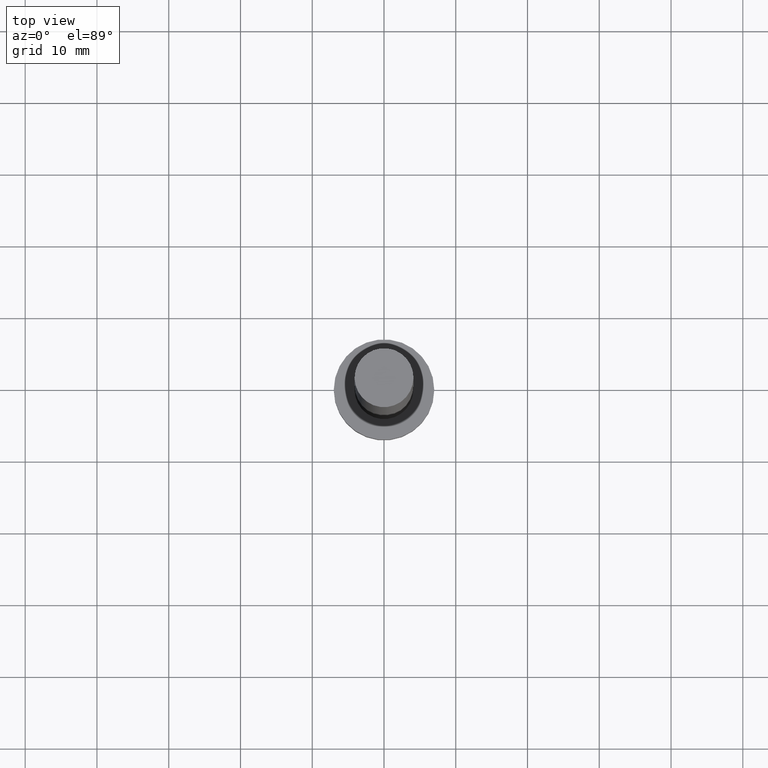
[diagram: clean part render]
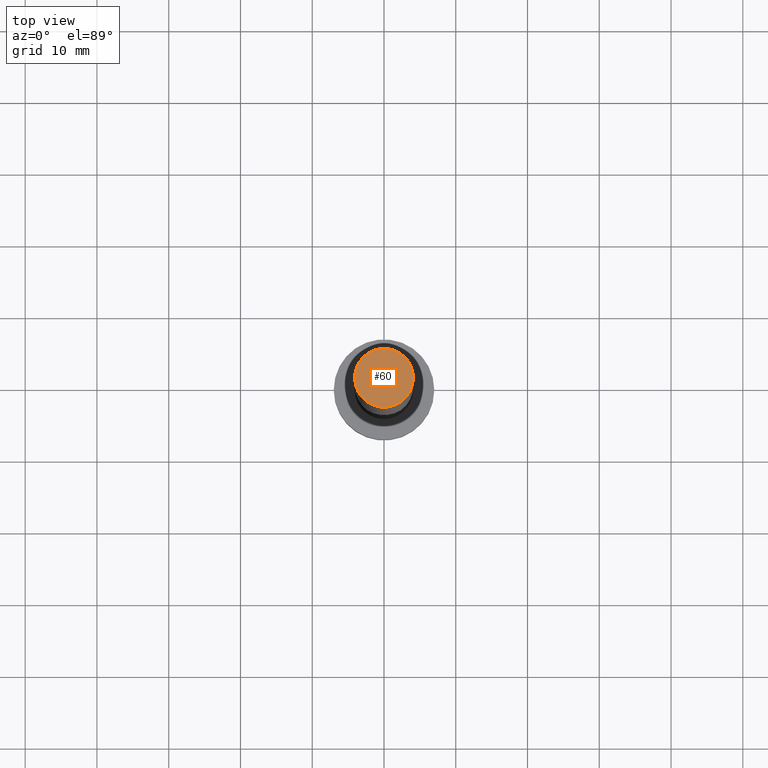
[diagram: same view with one face highlighted and labeled with its STEP entity id]
A machine part, top view. The second image highlights one B-rep face of the part: STEP entity #60.
In plain terms, the highlighted planar face has unit normal (0, 0, 1).
Its self-contained STEP definition (entity closure, byte-faithful):
#2 = CARTESIAN_POINT ( 'NONE',  ( 4.099999999999999645, 5.021051876504147385E-16, 100.0000000000000000 ) ) ;
#8 = VERTEX_POINT ( 'NONE', #2 ) ;
#13 = ORIENTED_EDGE ( 'NONE', *, *, #128, .T. ) ;
#16 = CARTESIAN_POINT ( 'NONE',  ( 0.000000000000000000, 0.000000000000000000, 100.0000000000000000 ) ) ;
#24 = ORIENTED_EDGE ( 'NONE', *, *, #49, .T. ) ;
#31 = CIRCLE ( 'NONE', #169, 4.099999999999999645 ) ;
#49 = EDGE_CURVE ( 'NONE', #199, #8, #220, .T. ) ;
#54 = DIRECTION ( 'NONE',  ( 1.000000000000000000, 0.000000000000000000, -0.000000000000000000 ) ) ;
#60 = ADVANCED_FACE ( 'NONE', ( #139 ), #240, .T. ) ;
#91 = DIRECTION ( 'NONE',  ( 0.000000000000000000, 0.000000000000000000, 1.000000000000000000 ) ) ;
#92 = EDGE_LOOP ( 'NONE', ( #24, #13 ) ) ;
#95 = CARTESIAN_POINT ( 'NONE',  ( 0.000000000000000000, 0.000000000000000000, 100.0000000000000000 ) ) ;
#124 = DIRECTION ( 'NONE',  ( 1.000000000000000000, 0.000000000000000000, 0.000000000000000000 ) ) ;
#125 = DIRECTION ( 'NONE',  ( 0.000000000000000000, 0.000000000000000000, 1.000000000000000000 ) ) ;
#128 = EDGE_CURVE ( 'NONE', #8, #199, #31, .T. ) ;
#129 = CARTESIAN_POINT ( 'NONE',  ( -4.099999999999999645, 0.000000000000000000, 100.0000000000000000 ) ) ;
#139 = FACE_OUTER_BOUND ( 'NONE', #92, .T. ) ;
#169 = AXIS2_PLACEMENT_3D ( 'NONE', #16, #226, #230 ) ;
#182 = AXIS2_PLACEMENT_3D ( 'NONE', #95, #125, #54 ) ;
#199 = VERTEX_POINT ( 'NONE', #129 ) ;
#204 = AXIS2_PLACEMENT_3D ( 'NONE', #216, #91, #124 ) ;
#216 = CARTESIAN_POINT ( 'NONE',  ( 0.000000000000000000, 0.000000000000000000, 100.0000000000000000 ) ) ;
#220 = CIRCLE ( 'NONE', #204, 4.099999999999999645 ) ;
#226 = DIRECTION ( 'NONE',  ( 0.000000000000000000, 0.000000000000000000, 1.000000000000000000 ) ) ;
#230 = DIRECTION ( 'NONE',  ( 1.000000000000000000, 0.000000000000000000, 0.000000000000000000 ) ) ;
#240 = PLANE ( 'NONE',  #182 ) ;